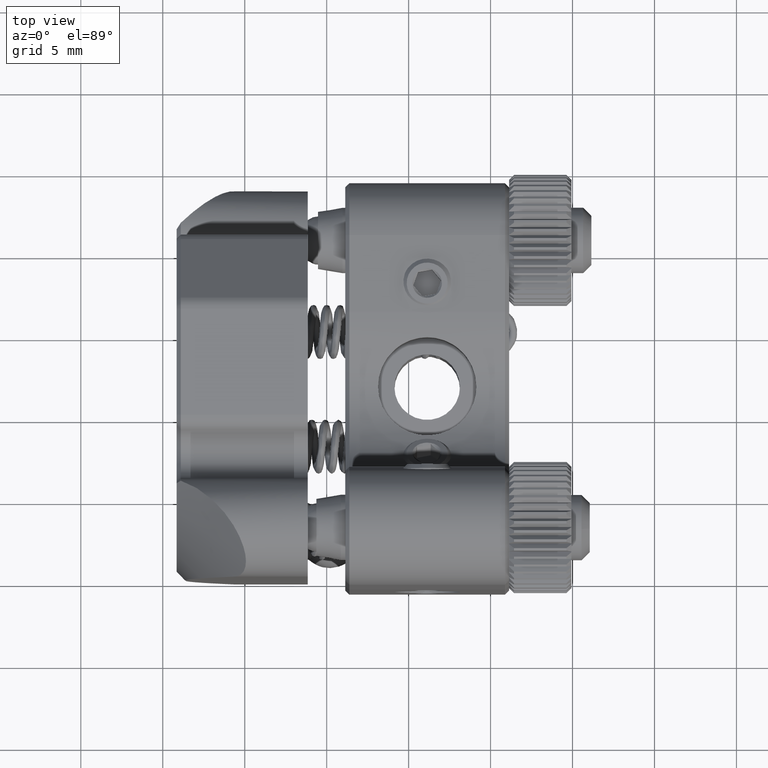
[diagram: clean part render]
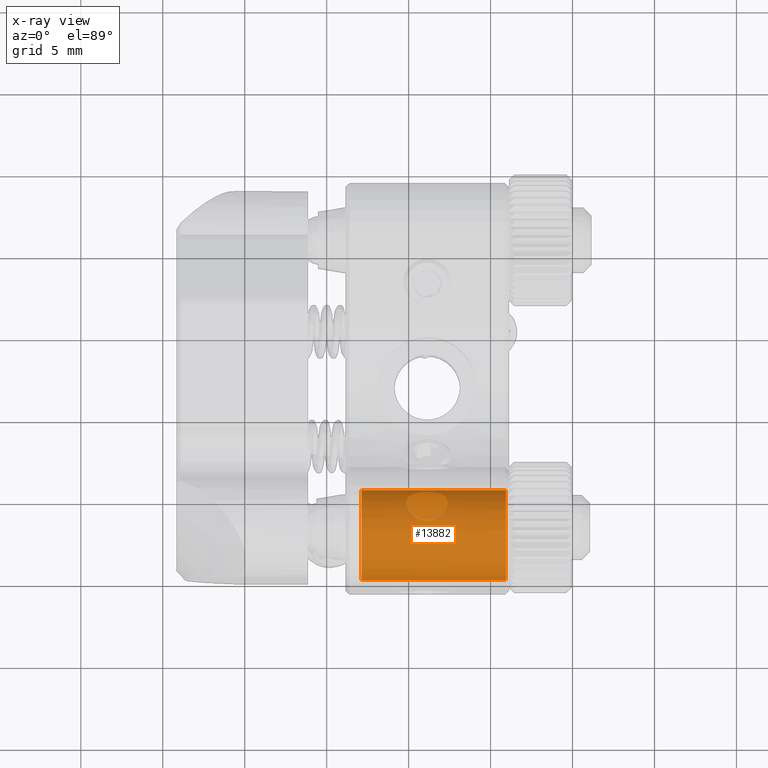
[diagram: x-ray — body ghosted, one internal face saturated and labeled with its STEP entity id]
A machine part, top view, then the same camera in x-ray: the body is ghosted and one INTERNAL B-rep face — a face not visible from any outside direction — is saturated and labeled: STEP entity #13882.
In plain terms, the highlighted cylindrical surface (bore or boss wall) has radius 2.75 mm, axis along (1, -0, -0).
Its self-contained STEP definition (entity closure, byte-faithful):
#707 = CARTESIAN_POINT ( 'NONE',  ( -2.870028676230056419, -4.540419083213500961, 17.71552107826714462 ) ) ;
#921 = CARTESIAN_POINT ( 'NONE',  ( -3.951614241226350632, -4.341993671093196561, 17.23760350639907557 ) ) ;
#998 = DIRECTION ( 'NONE',  ( 0.000000000000000000, 0.9999583383935167769, -0.009128059885695814432 ) ) ;
#2816 = CARTESIAN_POINT ( 'NONE',  ( -3.097779757540860324, -4.436000757145683870, 17.49883967211155067 ) ) ;
#3096 = AXIS2_PLACEMENT_3D ( 'NONE', #30598, #30415, #22430 ) ;
#3348 = CARTESIAN_POINT ( 'NONE',  ( -3.784855647689123082, -6.093611884375728316, 19.02145355311144925 ) ) ;
#5659 = CARTESIAN_POINT ( 'NONE',  ( -3.234956155590927640, -4.399673644241950399, 17.40506333719449117 ) ) ;
#5950 = CYLINDRICAL_SURFACE ( 'NONE', #16408, 2.749999999999999112 ) ;
#6055 = CARTESIAN_POINT ( 'NONE',  ( -5.084933690489666702, -5.244895217050201452, 18.56408915794114023 ) ) ;
#6197 = CARTESIAN_POINT ( 'NONE',  ( -4.202035177386962417, -6.056199201510703567, 19.00956669346352257 ) ) ;
#6235 = CARTESIAN_POINT ( 'NONE',  ( -4.033740986109633830, -4.344764465010015897, 17.24656825679591421 ) ) ;
#6936 = EDGE_CURVE ( 'NONE', #14075, #14075, #24621, .T. ) ;
#8516 = CIRCLE ( 'NONE', #28352, 2.749999999971195486 ) ;
#8607 = FACE_BOUND ( 'NONE', #30356, .T. ) ;
#8625 = CARTESIAN_POINT ( 'NONE',  ( 0.9321815307469739631, -6.965561093311780638, 16.41334991612886895 ) ) ;
#8709 = CARTESIAN_POINT ( 'NONE',  ( -4.194890970581865552, -4.355962021884919544, 17.28100218319783110 ) ) ;
#8850 = CARTESIAN_POINT ( 'NONE',  ( -2.778286081744639979, -5.497275328120791116, 18.74355984554165389 ) ) ;
#8891 = CARTESIAN_POINT ( 'NONE',  ( -4.864753193149310206, -4.539928695361000521, 17.71457183046176098 ) ) ;
#8963 = DIRECTION ( 'NONE',  ( 1.000000000000000000, -6.383674169540705541E-19, -4.535192354038399595E-18 ) ) ;
#9062 = CARTESIAN_POINT ( 'NONE',  ( -5.051917894002905030, -4.738040485551536563, 18.02780282039481463 ) ) ;
#11376 = CARTESIAN_POINT ( 'NONE',  ( -4.637418276754416091, -4.435898451341508064, 17.49855861409833224 ) ) ;
#11520 = CARTESIAN_POINT ( 'NONE',  ( -2.617964368106989959, -5.062997812154060640, 18.40071629275518106 ) ) ;
#11733 = CARTESIAN_POINT ( 'NONE',  ( -4.500640045501811848, -4.399602165983409030, 17.40489763045436789 ) ) ;
#11761 = B_SPLINE_CURVE_WITH_KNOTS ( 'NONE', 3,
 ( #27874, #921, #6235, #8709, #22366, #11733, #11376, #8891, #17049, #9062, #32997, #30352, #19894, #22188, #6055, #22154, #13650, #33139, #32439, #6197, #16647, #3348, #27125, #27835, #14185, #22335, #19144, #21794, #8850, #19507, #19328, #29958, #11520, #24990, #17013, #30312, #707, #2816, #5659, #21626, #16301, #29781 ),
 .UNSPECIFIED., .T., .F.,
 ( 4, 2, 2, 2, 2, 2, 2, 2, 2, 2, 2, 2, 2, 2, 2, 2, 2, 2, 2, 2, 4 ),
 ( 0.000000000000000000, 0.0002475012794106509892, 0.0004950025588213019783, 0.0009900051176426039566, 0.001485007676463905935, 0.001732508955874555731, 0.001980010235285205311, 0.002475012794106503169, 0.002970015352927801028, 0.003465017911749099320, 0.003960020470570396744, 0.004207521749981044806, 0.004455023029391692868, 0.004950025588212989859, 0.005445028147034287717, 0.005692529426444938381, 0.005940030705855589045, 0.006435033264676883434, 0.006930035823498177823, 0.007425038382319471345, 0.007920040941140765733 ),
 .UNSPECIFIED. ) ;
#13650 = CARTESIAN_POINT ( 'NONE',  ( -4.865816749812771569, -5.619077607525857943, 18.81417112144747961 ) ) ;
#13882 = ADVANCED_FACE ( 'NONE', ( #33257, #8607, #30786 ), #5950, .F. ) ;
#13957 = DIRECTION ( 'NONE',  ( 0.000000000000000000, -0.009128059885695538611, -0.9999583383935168879 ) ) ;
#14050 = ORIENTED_EDGE ( 'NONE', *, *, #6936, .T. ) ;
#14075 = VERTEX_POINT ( 'NONE', #32674 ) ;
#14185 = CARTESIAN_POINT ( 'NONE',  ( -3.461542696606913605, -6.024883869941399794, 18.99769273197161468 ) ) ;
#15462 = VERTEX_POINT ( 'NONE', #28939 ) ;
#16301 = CARTESIAN_POINT ( 'NONE',  ( -3.700226925443348414, -4.341993671093196561, 17.23760350639907202 ) ) ;
#16408 = AXIS2_PLACEMENT_3D ( 'NONE', #19443, #8963, #998 ) ;
#16647 = CARTESIAN_POINT ( 'NONE',  ( -4.036328395812161851, -6.093427363438555844, 19.02139185866765558 ) ) ;
#16966 = DIRECTION ( 'NONE',  ( 1.000000000000000000, -6.383674169540705541E-19, -4.535192354038399595E-18 ) ) ;
#17013 = CARTESIAN_POINT ( 'NONE',  ( -2.650733916798127421, -4.783677047953981187, 18.09435212878875632 ) ) ;
#17049 = CARTESIAN_POINT ( 'NONE',  ( -4.957482861586554712, -4.609067423929215757, 17.83906466267433544 ) ) ;
#18073 = EDGE_CURVE ( 'NONE', #15462, #15462, #11761, .T. ) ;
#19144 = CARTESIAN_POINT ( 'NONE',  ( -3.098597103547073406, -5.834649003057569949, 18.92291416804614101 ) ) ;
#19328 = CARTESIAN_POINT ( 'NONE',  ( -2.659051534297680153, -5.247043644928864659, 18.56179321979583108 ) ) ;
#19443 = CARTESIAN_POINT ( 'NONE',  ( -8.867818469298683226, -6.965561093311780638, 16.41334991612886895 ) ) ;
#19507 = CARTESIAN_POINT ( 'NONE',  ( -2.683774498755965521, -5.310847646440495673, 18.61112919521775666 ) ) ;
#19894 = CARTESIAN_POINT ( 'NONE',  ( -5.117672644540829374, -4.943818887096099957, 18.27934153539786877 ) ) ;
#21626 = CARTESIAN_POINT ( 'NONE',  ( -3.534276346055443607, -4.353109113366762983, 17.27495804242359156 ) ) ;
#21794 = CARTESIAN_POINT ( 'NONE',  ( -2.871089806649233189, -5.620529824672495955, 18.81496724134261100 ) ) ;
#22154 = CARTESIAN_POINT ( 'NONE',  ( -4.958036574258871454, -5.496628253464367120, 18.74328696592658616 ) ) ;
#22176 = CARTESIAN_POINT ( 'NONE',  ( 0.9321815307469739631, -6.990663257997180580, 13.66346448557550097 ) ) ;
#22188 = CARTESIAN_POINT ( 'NONE',  ( -5.118104461168075048, -5.117845838330154606, 18.45685509664887292 ) ) ;
#22335 = CARTESIAN_POINT ( 'NONE',  ( -3.235470984373688630, -5.927626709905616131, 18.96089735027150169 ) ) ;
#22366 = CARTESIAN_POINT ( 'NONE',  ( -4.274728315843570492, -4.364555647981654296, 17.30692346933705039 ) ) ;
#22430 = DIRECTION ( 'NONE',  ( 0.000000000000000000, 0.9999583383935167769, -0.009128059885695814432 ) ) ;
#22545 = ORIENTED_EDGE ( 'NONE', *, *, #33692, .T. ) ;
#22594 = EDGE_LOOP ( 'NONE', ( #14050 ) ) ;
#24294 = EDGE_LOOP ( 'NONE', ( #22545 ) ) ;
#24621 = CIRCLE ( 'NONE', #3096, 2.749999999999999112 ) ;
#24990 = CARTESIAN_POINT ( 'NONE',  ( -2.617532330278614427, -4.888616098576330948, 18.22340187777558285 ) ) ;
#27125 = CARTESIAN_POINT ( 'NONE',  ( -3.702664723200626451, -6.084749527806252445, 19.01853649834174931 ) ) ;
#27835 = CARTESIAN_POINT ( 'NONE',  ( -3.541426946388924524, -6.050610160041249408, 19.00674362549460383 ) ) ;
#27874 = CARTESIAN_POINT ( 'NONE',  ( -3.867818469298682782, -4.341993671093196561, 17.23760350639907557 ) ) ;
#28352 = AXIS2_PLACEMENT_3D ( 'NONE', #8625, #16966, #13957 ) ;
#28939 = CARTESIAN_POINT ( 'NONE',  ( -3.867818469298682782, -4.341993671093195672, 17.23760350639907202 ) ) ;
#29781 = CARTESIAN_POINT ( 'NONE',  ( -3.867818469298682782, -4.341993671093196561, 17.23760350639907557 ) ) ;
#29958 = CARTESIAN_POINT ( 'NONE',  ( -2.626272150643725212, -5.123113770135944378, 18.45650891894537082 ) ) ;
#30312 = CARTESIAN_POINT ( 'NONE',  ( -2.777732622809323981, -4.609064174665142843, 17.83929125389955317 ) ) ;
#30352 = CARTESIAN_POINT ( 'NONE',  ( -5.109371854418179204, -4.889154978682634045, 18.21824407557299352 ) ) ;
#30356 = EDGE_LOOP ( 'NONE', ( #33483 ) ) ;
#30415 = DIRECTION ( 'NONE',  ( -1.000000000000000000, 6.383674169540705541E-19, 4.535192354038399595E-18 ) ) ;
#30598 = CARTESIAN_POINT ( 'NONE',  ( -7.867818469298681450, -6.965561093311780638, 16.41334991612886895 ) ) ;
#30786 = FACE_OUTER_BOUND ( 'NONE', #24294, .T. ) ;
#32439 = CARTESIAN_POINT ( 'NONE',  ( -4.501158936544086053, -5.926879802878604941, 18.96058798550481228 ) ) ;
#32674 = CARTESIAN_POINT ( 'NONE',  ( -7.867818469298681450, -4.215675662729609918, 16.38824775144320611 ) ) ;
#32997 = CARTESIAN_POINT ( 'NONE',  ( -5.076620497606588955, -4.786189224152530564, 18.09246978545987261 ) ) ;
#33139 = CARTESIAN_POINT ( 'NONE',  ( -4.638233328280552570, -5.833780287528390396, 18.92253951539433743 ) ) ;
#33166 = VERTEX_POINT ( 'NONE', #22176 ) ;
#33257 = FACE_OUTER_BOUND ( 'NONE', #22594, .T. ) ;
#33483 = ORIENTED_EDGE ( 'NONE', *, *, #18073, .T. ) ;
#33692 = EDGE_CURVE ( 'NONE', #33166, #33166, #8516, .T. ) ;